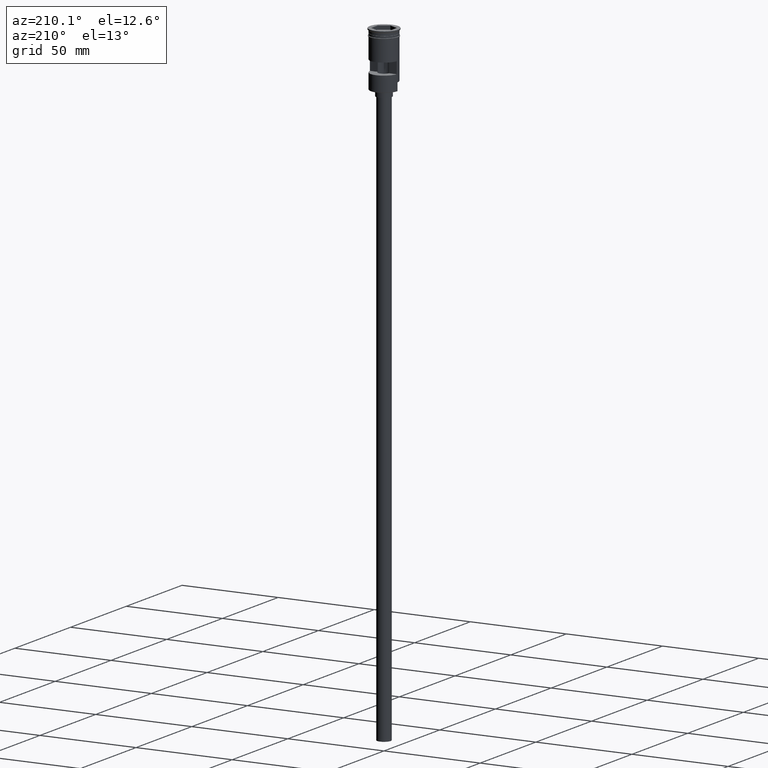
[diagram: clean part render]
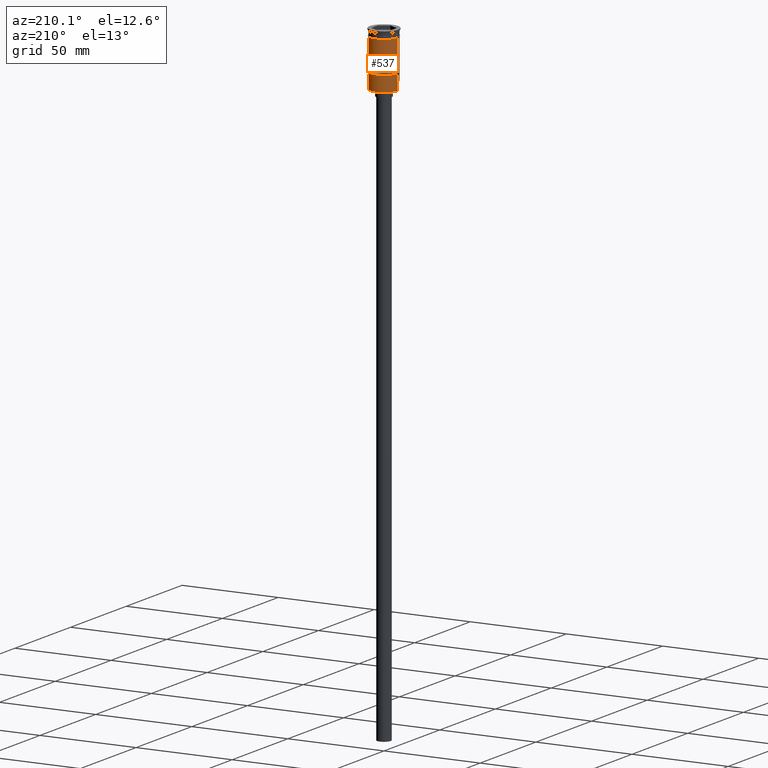
[diagram: same view with one face highlighted and labeled with its STEP entity id]
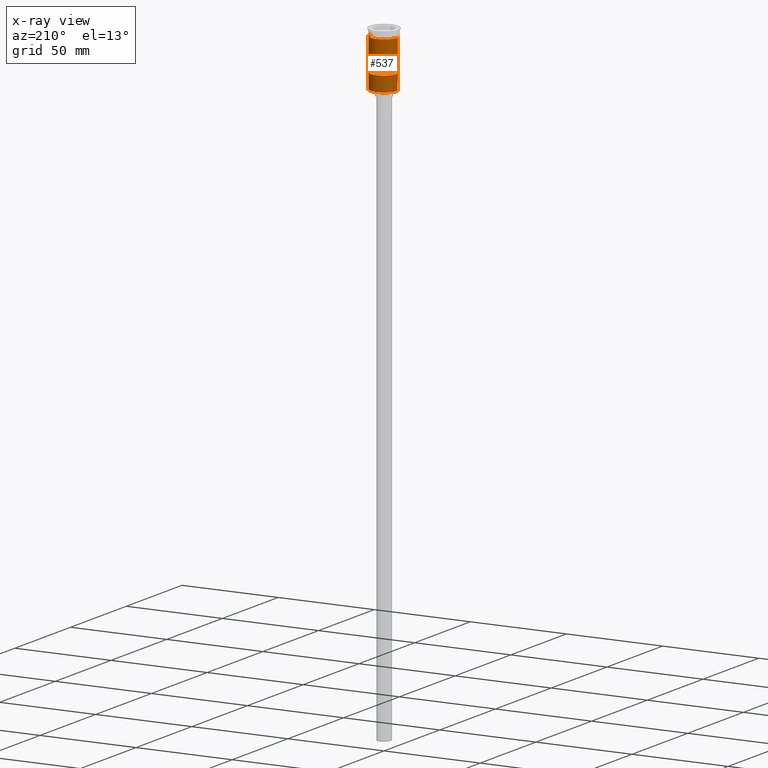
[diagram: x-ray of the same camera — body ghosted, the highlighted face saturated]
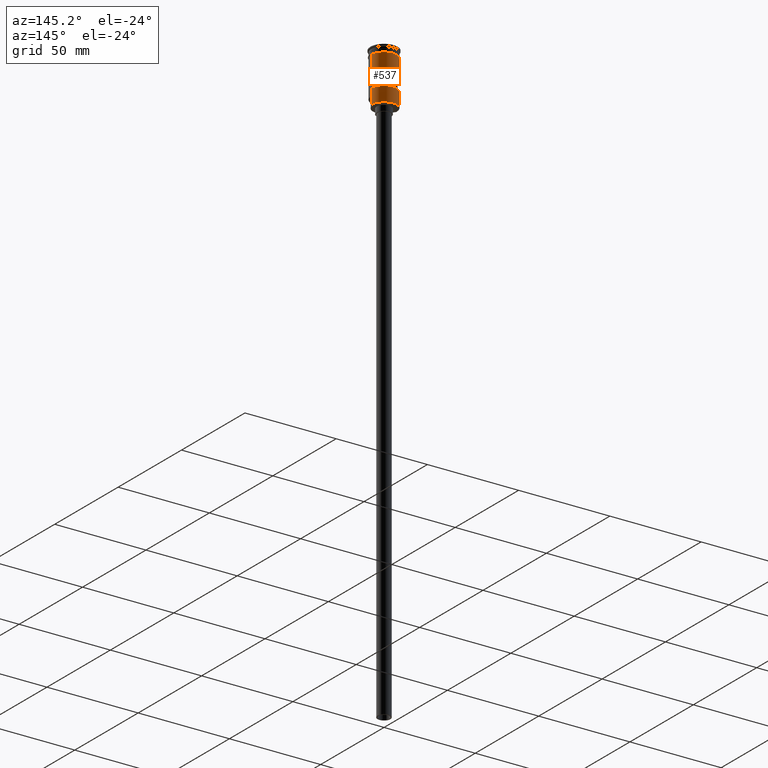
[diagram: same view with one face highlighted and labeled with its STEP entity id]
A machine part, auxiliary view. The second image highlights one B-rep face of the part: STEP entity #537.
The next image is the same camera in x-ray: the body ghosted, the highlighted face saturated — about 0% of this face is hidden behind the body in this view.
A second angle (auxiliary view) of the same face is appended — the face is thin or edge-on in the first view.
In plain terms, the highlighted cylindrical surface (edge-blend (fillet) strip) has radius 7 mm, axis along (-0, -0, 1).
Its self-contained STEP definition (entity closure, byte-faithful):
#47 = CARTESIAN_POINT ( 'NONE',  ( -6.974238309665074631, 0.5999999999999999778, -20.50000000000000000 ) ) ;
#54 = VECTOR ( 'NONE', #535, 1000.000000000000000 ) ;
#59 = FACE_BOUND ( 'NONE', #979, .T. ) ;
#63 = LINE ( 'NONE', #563, #54 ) ;
#66 = ORIENTED_EDGE ( 'NONE', *, *, #107, .F. ) ;
#72 = EDGE_CURVE ( 'NONE', #1570, #821, #1274, .T. ) ;
#74 = VERTEX_POINT ( 'NONE', #1113 ) ;
#107 = EDGE_CURVE ( 'NONE', #414, #147, #949, .T. ) ;
#121 = DIRECTION ( 'NONE',  ( -0.000000000000000000, -0.000000000000000000, 1.000000000000000000 ) ) ;
#134 = VECTOR ( 'NONE', #121, 1000.000000000000000 ) ;
#147 = VERTEX_POINT ( 'NONE', #1111 ) ;
#192 = LINE ( 'NONE', #939, #1301 ) ;
#212 = DIRECTION ( 'NONE',  ( 0.000000000000000000, 0.000000000000000000, 1.000000000000000000 ) ) ;
#253 = LINE ( 'NONE', #1244, #1302 ) ;
#292 = DIRECTION ( 'NONE',  ( -0.000000000000000000, -0.000000000000000000, 1.000000000000000000 ) ) ;
#328 = AXIS2_PLACEMENT_3D ( 'NONE', #1348, #649, #1251 ) ;
#344 = ORIENTED_EDGE ( 'NONE', *, *, #1432, .T. ) ;
#360 = VERTEX_POINT ( 'NONE', #1117 ) ;
#364 = CARTESIAN_POINT ( 'NONE',  ( -6.999999999999993783, 0.000000000000000000, -28.30000000000002203 ) ) ;
#396 = DIRECTION ( 'NONE',  ( -0.000000000000000000, -0.000000000000000000, 1.000000000000000000 ) ) ;
#414 = VERTEX_POINT ( 'NONE', #533 ) ;
#442 = CARTESIAN_POINT ( 'NONE',  ( 6.999999999999996447, 0.000000000000000000, 0.000000000000000000 ) ) ;
#448 = FACE_OUTER_BOUND ( 'NONE', #1206, .T. ) ;
#453 = EDGE_CURVE ( 'NONE', #360, #1570, #192, .T. ) ;
#458 = AXIS2_PLACEMENT_3D ( 'NONE', #1291, #1558, #1429 ) ;
#474 = LINE ( 'NONE', #1459, #1519 ) ;
#486 = EDGE_CURVE ( 'NONE', #74, #360, #1148, .T. ) ;
#521 = AXIS2_PLACEMENT_3D ( 'NONE', #1303, #212, #1183 ) ;
#533 = CARTESIAN_POINT ( 'NONE',  ( 6.999999999999999112, 0.000000000000000000, -3.799999999999998490 ) ) ;
#535 = DIRECTION ( 'NONE',  ( -0.000000000000000000, -0.000000000000000000, 1.000000000000000000 ) ) ;
#537 = ADVANCED_FACE ( 'NONE', ( #59, #448 ), #681, .T. ) ;
#541 = AXIS2_PLACEMENT_3D ( 'NONE', #1242, #632, #1506 ) ;
#556 = CARTESIAN_POINT ( 'NONE',  ( 0.000000000000000000, 0.000000000000000000, 0.000000000000000000 ) ) ;
#563 = CARTESIAN_POINT ( 'NONE',  ( -6.974238309665074631, 0.5999999999999999778, 0.000000000000000000 ) ) ;
#596 = VERTEX_POINT ( 'NONE', #1275 ) ;
#602 = CARTESIAN_POINT ( 'NONE',  ( 6.999999999999993783, 8.572527594031465301E-16, -28.30000000000002203 ) ) ;
#632 = DIRECTION ( 'NONE',  ( -0.000000000000000000, -5.421010862427526114E-16, 1.000000000000000000 ) ) ;
#649 = DIRECTION ( 'NONE',  ( -0.000000000000000000, -0.000000000000000000, 1.000000000000000000 ) ) ;
#676 = ORIENTED_EDGE ( 'NONE', *, *, #453, .F. ) ;
#681 = CYLINDRICAL_SURFACE ( 'NONE', #1097, 6.999999999999996447 ) ;
#723 = VECTOR ( 'NONE', #292, 1000.000000000000000 ) ;
#762 = EDGE_CURVE ( 'NONE', #1566, #596, #253, .T. ) ;
#821 = VERTEX_POINT ( 'NONE', #47 ) ;
#823 = CARTESIAN_POINT ( 'NONE',  ( 6.974238309665075519, 0.5999999999999999778, -20.50000000000000000 ) ) ;
#872 = EDGE_CURVE ( 'NONE', #1511, #147, #474, .T. ) ;
#917 = ORIENTED_EDGE ( 'NONE', *, *, #486, .F. ) ;
#929 = ORIENTED_EDGE ( 'NONE', *, *, #1312, .T. ) ;
#939 = CARTESIAN_POINT ( 'NONE',  ( 6.974238309665074631, 0.5999999999999999778, 0.000000000000000000 ) ) ;
#947 = ORIENTED_EDGE ( 'NONE', *, *, #72, .F. ) ;
#949 = CIRCLE ( 'NONE', #328, 6.999999999999999112 ) ;
#979 = EDGE_LOOP ( 'NONE', ( #947, #676, #917, #1505 ) ) ;
#999 = ORIENTED_EDGE ( 'NONE', *, *, #872, .T. ) ;
#1012 = CIRCLE ( 'NONE', #521, 6.999999999999996447 ) ;
#1058 = DIRECTION ( 'NONE',  ( 0.000000000000000000, 0.000000000000000000, -1.000000000000000000 ) ) ;
#1097 = AXIS2_PLACEMENT_3D ( 'NONE', #556, #1299, #1422 ) ;
#1111 = CARTESIAN_POINT ( 'NONE',  ( -7.000000000000000000, 8.572527594031472204E-16, -3.799999999999998490 ) ) ;
#1113 = CARTESIAN_POINT ( 'NONE',  ( -6.974238309665074631, 0.5999999999999999778, -14.50000000000000178 ) ) ;
#1117 = CARTESIAN_POINT ( 'NONE',  ( 6.974238309665075519, 0.5999999999999999778, -14.50000000000000178 ) ) ;
#1148 = CIRCLE ( 'NONE', #458, 6.999999999999996447 ) ;
#1183 = DIRECTION ( 'NONE',  ( -1.000000000000000000, 0.000000000000000000, 0.000000000000000000 ) ) ;
#1206 = EDGE_LOOP ( 'NONE', ( #344, #999, #66, #1402, #1430, #929 ) ) ;
#1242 = CARTESIAN_POINT ( 'NONE',  ( 0.000000000000000000, 0.000000000000000000, -20.50000000000000000 ) ) ;
#1244 = CARTESIAN_POINT ( 'NONE',  ( 6.999999999999993783, 8.572527594031465301E-16, -28.50000000000000000 ) ) ;
#1251 = DIRECTION ( 'NONE',  ( 1.000000000000000000, 0.000000000000000000, 0.000000000000000000 ) ) ;
#1274 = CIRCLE ( 'NONE', #541, 6.999999999999996447 ) ;
#1275 = CARTESIAN_POINT ( 'NONE',  ( 6.999999999999996447, 8.572527594031468259E-16, -24.30000000000006466 ) ) ;
#1280 = LINE ( 'NONE', #1389, #723 ) ;
#1290 = LINE ( 'NONE', #442, #134 ) ;
#1291 = CARTESIAN_POINT ( 'NONE',  ( 0.000000000000000000, 0.000000000000000000, -14.50000000000000178 ) ) ;
#1299 = DIRECTION ( 'NONE',  ( -0.000000000000000000, -0.000000000000000000, 1.000000000000000000 ) ) ;
#1301 = VECTOR ( 'NONE', #1058, 1000.000000000000000 ) ;
#1302 = VECTOR ( 'NONE', #396, 1000.000000000000000 ) ;
#1303 = CARTESIAN_POINT ( 'NONE',  ( 0.000000000000000000, 0.000000000000000000, -28.30000000000002203 ) ) ;
#1312 = EDGE_CURVE ( 'NONE', #1566, #1346, #1012, .T. ) ;
#1346 = VERTEX_POINT ( 'NONE', #364 ) ;
#1348 = CARTESIAN_POINT ( 'NONE',  ( 0.000000000000000000, 0.000000000000000000, -3.799999999999998490 ) ) ;
#1389 = CARTESIAN_POINT ( 'NONE',  ( -6.999999999999993783, 0.000000000000000000, -28.50000000000000000 ) ) ;
#1402 = ORIENTED_EDGE ( 'NONE', *, *, #1557, .F. ) ;
#1405 = EDGE_CURVE ( 'NONE', #821, #74, #63, .T. ) ;
#1422 = DIRECTION ( 'NONE',  ( 1.000000000000000000, 0.000000000000000000, 0.000000000000000000 ) ) ;
#1429 = DIRECTION ( 'NONE',  ( 0.000000000000000000, -1.000000000000000000, 2.478176394252582620E-16 ) ) ;
#1430 = ORIENTED_EDGE ( 'NONE', *, *, #762, .F. ) ;
#1432 = EDGE_CURVE ( 'NONE', #1346, #1511, #1280, .T. ) ;
#1434 = CARTESIAN_POINT ( 'NONE',  ( -6.999999999999993783, 0.000000000000000000, -24.30000000000006466 ) ) ;
#1459 = CARTESIAN_POINT ( 'NONE',  ( -6.999999999999996447, 8.572527594031468259E-16, 0.000000000000000000 ) ) ;
#1505 = ORIENTED_EDGE ( 'NONE', *, *, #1405, .F. ) ;
#1506 = DIRECTION ( 'NONE',  ( 0.000000000000000000, 1.000000000000000000, 4.956352788505165240E-16 ) ) ;
#1511 = VERTEX_POINT ( 'NONE', #1434 ) ;
#1519 = VECTOR ( 'NONE', #1572, 1000.000000000000000 ) ;
#1557 = EDGE_CURVE ( 'NONE', #596, #414, #1290, .T. ) ;
#1558 = DIRECTION ( 'NONE',  ( -0.000000000000000000, -2.710505431213763057E-16, -1.000000000000000000 ) ) ;
#1566 = VERTEX_POINT ( 'NONE', #602 ) ;
#1570 = VERTEX_POINT ( 'NONE', #823 ) ;
#1572 = DIRECTION ( 'NONE',  ( -0.000000000000000000, -0.000000000000000000, 1.000000000000000000 ) ) ;